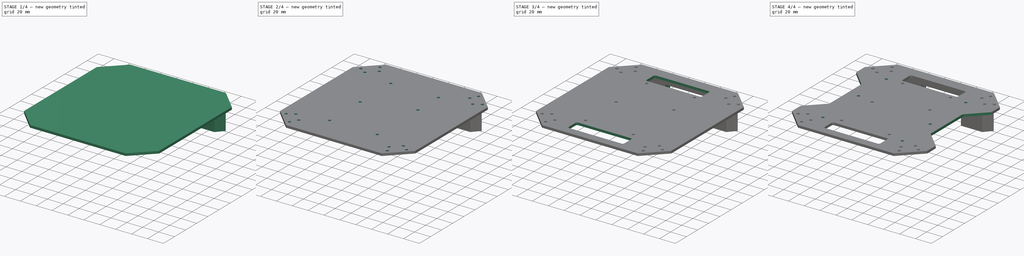
[diagram: build sequence overview — one tinted view per stage of 4, left to right]
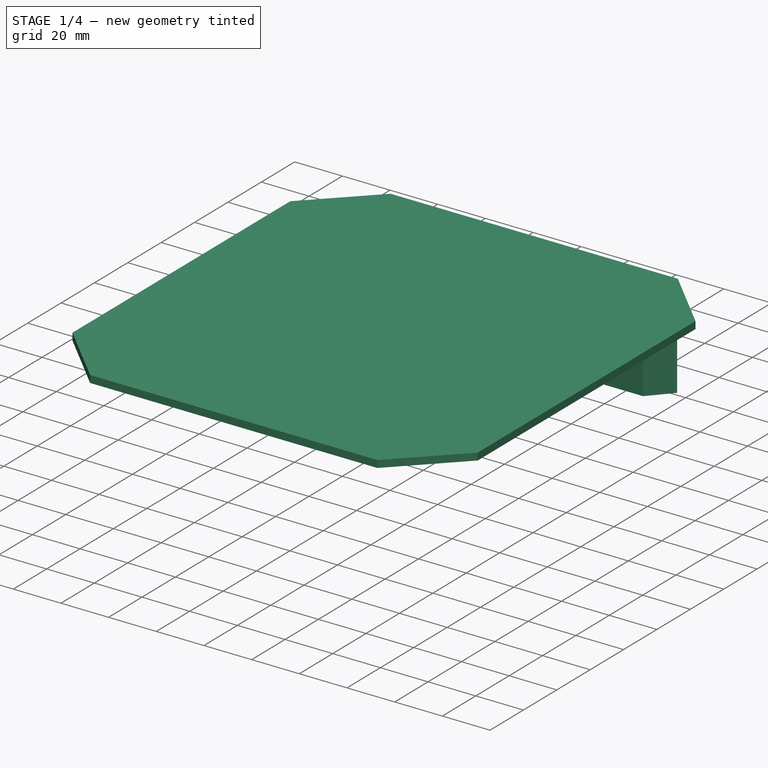
[diagram: stage 1 of 4 — iso view after this stage's code; geometry added in this stage tinted green]
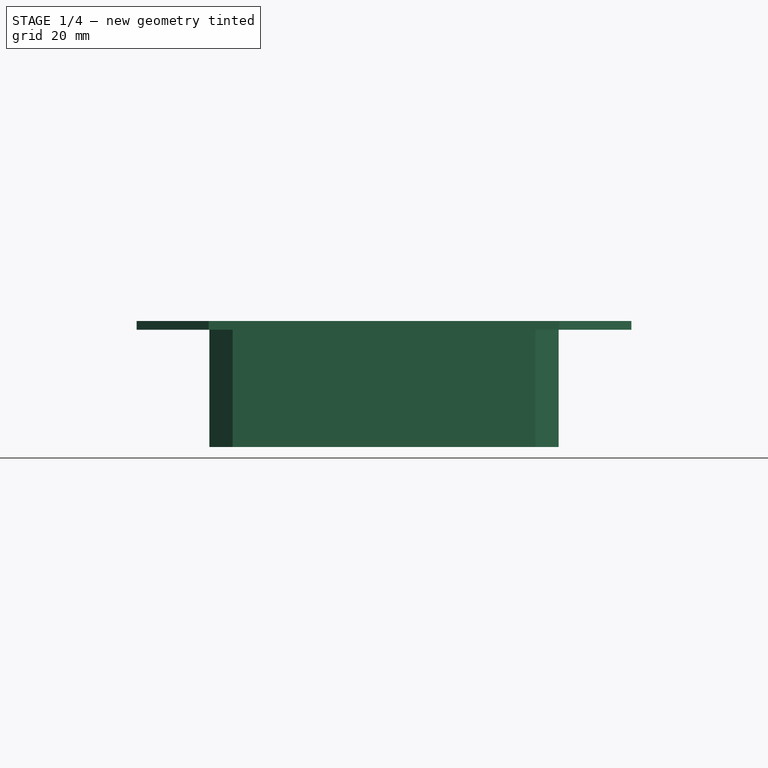
[diagram: stage 1 of 4 — front view after this stage's code; geometry added in this stage tinted green]
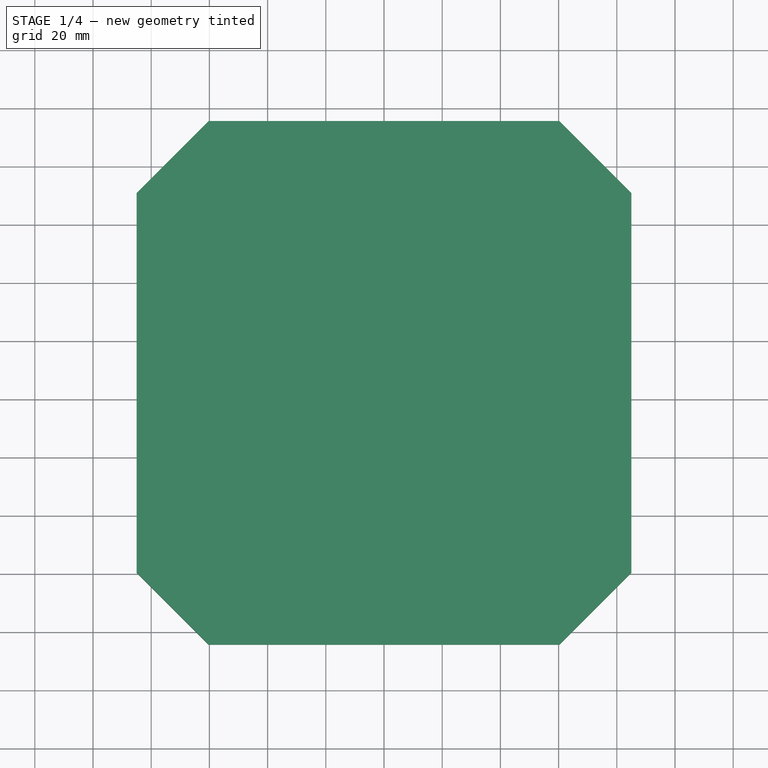
[diagram: stage 1 of 4 — top view after this stage's code; geometry added in this stage tinted green]
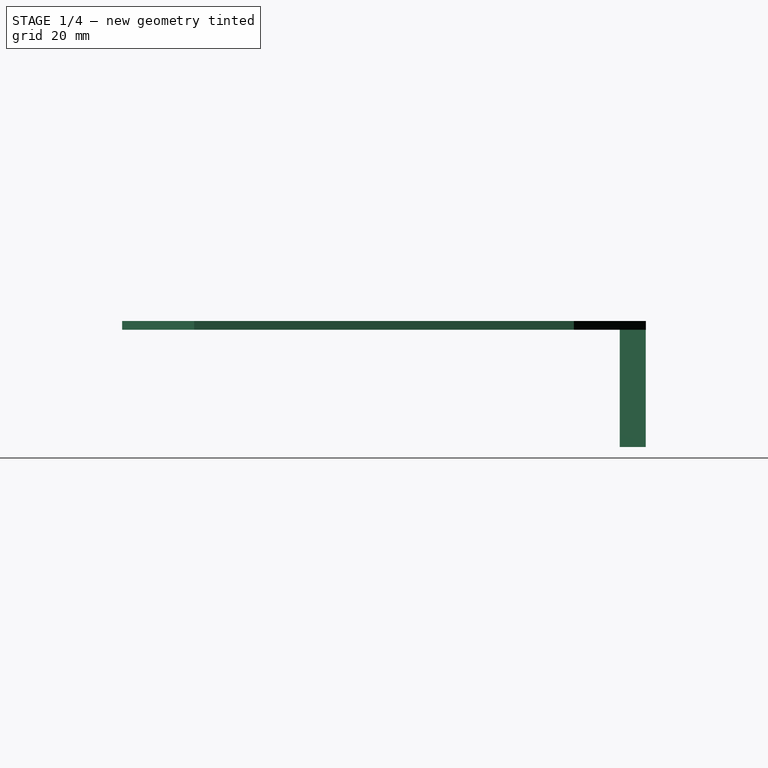
[diagram: stage 1 of 4 — right view after this stage's code; geometry added in this stage tinted green]
FCSTD DOCUMENT  (FreeCAD 1.0R39285 (Git))
Label: rr-top-body
License: All rights reserved
LicenseURL: http://en.wikipedia.org/wiki/All_rights_reserved
objects: Sketcher::SketchObject×9, PartDesign::Pocket×4, PartDesign::Hole×3, PartDesign::Pad×2, Spreadsheet::Sheet×1, PartDesign::Body×1
note: 46 computed .brp shape members not serialized (recipe doc carries the construction recipe); baked Part::Feature solids carry a one-line shape summary decoded from their .brp

FEATURE [Spreadsheet::Sheet] Spreadsheet
  cells = A1='offset_x; B1(offset_x)=15; A2='offset_y; B2(offset_y)=15; A3='base_x; B3(base_x)=170; A4='base_y; B4(base_y)=180; A5='base_h; B5(base_h)=183.5
FEATURE [Sketcher::SketchObject] Sketch  label="base_plate"
  ArcFitTolerance = 1e-06
  AttachmentSupport = -> [XY_Plane]
  FullyConstrained = true
  MakeInternals = false
  MapMode = 5
  expr: Constraints[12] = Spreadsheet.offset_y
  expr: Constraints[13] = Spreadsheet.offset_x
  expr: Constraints[18] = Spreadsheet.offset_x
  expr: Constraints[22] = Spreadsheet.base_x
  expr: Constraints[23] = Spreadsheet.base_y
  sketch-geometry (8):
    g0: LineSegment StartX=15 StartY=39.7487 StartZ=0 EndX=39.7487 EndY=15 EndZ=0
    g1: LineSegment StartX=39.7487 StartY=15 StartZ=0 EndX=160.251 EndY=15 EndZ=0
    g2: LineSegment StartX=160.251 StartY=15 StartZ=0 EndX=185 EndY=39.7487 EndZ=0
    g3: LineSegment StartX=185 StartY=39.7487 StartZ=0 EndX=185 EndY=170.251 EndZ=0
    g4: LineSegment StartX=185 StartY=170.251 StartZ=0 EndX=160.251 EndY=195 EndZ=0
    g5: LineSegment StartX=160.251 StartY=195 StartZ=0 EndX=39.7487 EndY=195 EndZ=0
    g6: LineSegment StartX=39.7487 StartY=195 StartZ=0 EndX=15 EndY=170.251 EndZ=0
    g7: LineSegment StartX=15 StartY=170.251 StartZ=0 EndX=15 EndY=39.7487 EndZ=0
  constraints (24):
    c: Coincident(g0,g1)
    c: Horizontal(g1)
    c: Coincident(g1,g2)
    c: Coincident(g2,g3)
    c: Vertical(g3)
    c: Coincident(g3,g4)
    c: Coincident(g4,g5)
    c: Horizontal(g5)
    c: Coincident(g5,g6)
    c: Coincident(g6,g7)
    c: Coincident(g7,g0)
    c: Distance(g0,g0) = 35
    c: DistanceY(g-1,g0) = 15
    c: DistanceX(g-1,g6) = 15
    c: Angle(g1,g0) = 2.35619
    c: Equal(g0,g6)
    c: Equal(g6,g4)
    c: Equal(g4,g2)
    c: DistanceX(g-1,g0) = 15
    c: Horizontal(g2,g0)
    c: Horizontal(g6,g3)
    c: Vertical(g5,g0)
    c: DistanceX(g0,g2) = 170
    c: DistanceY(g0,g5) = 180
FEATURE [Sketcher::SketchObject] Sketch001  label="engine_arm_holes"
  ArcFitTolerance = 1e-06
  AttachmentSupport = -> [XY_Plane]
  FullyConstrained = true
  MakeInternals = false
  MapMode = 5
  expr: Constraints[13] = Spreadsheet.base_x - 47
  expr: Constraints[21] = Spreadsheet.base_h
  expr: Constraints[22] = Spreadsheet.base_h
  expr: Constraints[42] = Spreadsheet.base_h
  expr: Constraints[43] = Spreadsheet.base_h
  expr: Constraints[44] = 10
  sketch-geometry (16):
    g0: Circle CenterX=32.5993 CenterY=42.7041 CenterZ=0 NormalX=0 NormalY=0 NormalZ=1 AngleXU=0 Radius=1.5
    g1: Circle CenterX=43.5 CenterY=32.4 CenterZ=0 NormalX=0 NormalY=0 NormalZ=1 AngleXU=0 Radius=1.5
    g2: Circle CenterX=24 CenterY=37.6 CenterZ=0 NormalX=0 NormalY=0 NormalZ=1 AngleXU=0 Radius=1.5
    g3: Circle CenterX=38.1841 CenterY=23.5 CenterZ=0 NormalX=0 NormalY=0 NormalZ=1 AngleXU=0 Radius=1.5
    g4: Circle CenterX=161.184 CenterY=23.5 CenterZ=0 NormalX=0 NormalY=0 NormalZ=1 AngleXU=0 Radius=1.5
    g5: Circle CenterX=176.085 CenterY=36.8406 CenterZ=0 NormalX=0 NormalY=0 NormalZ=1 AngleXU=0 Radius=1.5
    g6: Circle CenterX=167.984 CenterY=42.7041 CenterZ=0 NormalX=0 NormalY=0 NormalZ=1 AngleXU=0 Radius=1.5
    g7: Circle CenterX=168.148 CenterY=167.067 CenterZ=0 NormalX=0 NormalY=0 NormalZ=1 AngleXU=0 Radius=1.5
    g8: Circle CenterX=157.247 CenterY=177.371 CenterZ=0 NormalX=0 NormalY=0 NormalZ=1 AngleXU=0 Radius=1.5
    g9: Circle CenterX=162.301 CenterY=186 CenterZ=0 NormalX=0 NormalY=0 NormalZ=1 AngleXU=0 Radius=1.5
    g10: Circle CenterX=176.748 CenterY=172.17 CenterZ=0 NormalX=0 NormalY=0 NormalZ=1 AngleXU=0 Radius=1.5
    g11: Circle CenterX=32.5993 CenterY=166.896 CenterZ=0 NormalX=0 NormalY=0 NormalZ=1 AngleXU=0 Radius=1.5
    g12: Circle CenterX=43.3361 CenterY=177.371 CenterZ=0 NormalX=0 NormalY=0 NormalZ=1 AngleXU=0 Radius=1.5
    g13: Circle CenterX=38.2829 CenterY=186 CenterZ=0 NormalX=0 NormalY=0 NormalZ=1 AngleXU=0 Radius=1.5
    g14: Circle CenterX=24 CenterY=172 CenterZ=0 NormalX=0 NormalY=0 NormalZ=1 AngleXU=0 Radius=1.5
    g15: Circle CenterX=157.247 CenterY=32.2293 CenterZ=0 NormalX=0 NormalY=0 NormalZ=1 AngleXU=0 Radius=1.5
  constraints (48):
    c: Equal(g1,g0)
    c: Equal(g0,g2)
    c: Equal(g2,g3)
    c: Distance(g3,g2) = 20
    c: Distance(g0,g1) = 15
    c: Radius(g2) = 1.5
    c: Distance(g2,g0) = 10
    c: DistanceY(g-1,g2) = 37.6
    c: DistanceX(g-1,g2) = 24
    c: DistanceY(g-1,g3) = 23.5
    c: DistanceY(g-1,g1) = 32.4
    c: DistanceX(g-1,g1) = 43.5
    c: Horizontal(g4,g3)
    c: DistanceX(g3,g4) = 123
    c: Horizontal(g0,g6)
    c: Distance(g4,g5) = 20
    c: Equal(g10,g8)
    c: Equal(g8,g9)
    c: Distance(g10,g9) = 20
    c: Distance(g7,g8) = 15
    c: Distance(g7,g10) = 10
    c: Distance(g1,g7) = 183.5
    c: Distance(g8,g0) = 183.5
    c: Distance(g8,g9) = 10
    c: Equal(g8,g12)
    c: Equal(g12,g13)
    c: Equal(g13,g11)
    c: Vertical(g2,g14)
    c: Vertical(g0,g11)
    c: Distance(g14,g13) = 20
    c: Distance(g11,g12) = 15
    c: Distance(g14,g11) = 10
    c: Distance(g13,g12) = 10
    c: DistanceY(g-1,g14) = 172
    c: DistanceY(g-1,g13) = 186
    c: Horizontal(g8,g12)
    c: Horizontal(g9,g13)
    c: Equal(g1,g4)
    c: Equal(g4,g15)
    c: Equal(g15,g5)
    c: Equal(g5,g6)
    c: Distance(g15,g6) = 15
    c: Distance(g11,g15) = 183.5
    c: Distance(g6,g12) = 183.5
    c: Distance(g5,g6) = 10
    c: Equal(g10,g7)
    c: Equal(g9,g1)
    c: Equal(g13,g14)
FEATURE [Sketcher::SketchObject] Sketch002  label="mounting_plate"
  ArcFitTolerance = 1e-06
  AttachmentSupport = -> [XY_Plane]
  FullyConstrained = true
  MakeInternals = false
  MapMode = 5
  expr: Constraints[11] = Spreadsheet.base_x - 33 * 2
  expr: Constraints[8] = Spreadsheet.offset_x + 25
  expr: Constraints[9] = Spreadsheet.offset_x + 33
  sketch-geometry (4):
    g0: LineSegment StartX=40 StartY=194.944 StartZ=0 EndX=48 EndY=186 EndZ=0
    g1: LineSegment StartX=48 StartY=186 StartZ=0 EndX=152 EndY=186 EndZ=0
    g2: LineSegment StartX=152 StartY=186 StartZ=0 EndX=160 EndY=194.944 EndZ=0
    g3: LineSegment StartX=160 StartY=194.944 StartZ=0 EndX=40 EndY=194.944 EndZ=0
  constraints (12):
    c: Coincident(g0,g1)
    c: Horizontal(g1)
    c: Coincident(g1,g2)
    c: Coincident(g2,g3)
    c: Coincident(g3,g0)
    c: Horizontal(g3)
    c: Distance(g0,g0) = 12
    c: Equal(g0,g2)
    c: DistanceX(g-1,g0) = 40
    c: DistanceX(g-1,g0) = 48
    c: DistanceY(g-1,g0) = 186
    c: DistanceX(g0,g1) = 104
FEATURE [Sketcher::SketchObject] Sketch003  label="Cube-kore-mount"
  ArcFitTolerance = 1e-06
  AttachmentSupport = -> [XY_Plane]
  FullyConstrained = true
  MakeInternals = false
  MapMode = 5
  expr: Constraints[16] = Spreadsheet.offset_x + Spreadsheet.base_x / 2 - 30
  expr: Constraints[17] = Spreadsheet.offset_y + (Spreadsheet.base_y - 110) / 2
  sketch-geometry (6):
    g0: Circle CenterX=70 CenterY=160 CenterZ=0 NormalX=0 NormalY=0 NormalZ=1 AngleXU=0 Radius=3.2
    g1: Circle CenterX=130 CenterY=160 CenterZ=0 NormalX=0 NormalY=0 NormalZ=1 AngleXU=0 Radius=3.2
    g2: Circle CenterX=70 CenterY=50 CenterZ=0 NormalX=0 NormalY=0 NormalZ=1 AngleXU=0 Radius=3.2
    g3: Circle CenterX=130 CenterY=50 CenterZ=0 NormalX=0 NormalY=0 NormalZ=1 AngleXU=0 Radius=3.2
    g4: Circle CenterX=70 CenterY=105 CenterZ=0 NormalX=0 NormalY=0 NormalZ=1 AngleXU=0 Radius=3.2
    g5: Circle CenterX=130 CenterY=123 CenterZ=0 NormalX=0 NormalY=0 NormalZ=1 AngleXU=0 Radius=3.2
  constraints (18):
    c: Radius(g2) = 3.2
    c: Equal(g2,g3)
    c: Equal(g3,g1)
    c: Equal(g1,g0)
    c: Vertical(g1,g3)
    c: Horizontal(g1,g0)
    c: Vertical(g2,g0)
    c: Horizontal(g2,g3)
    c: DistanceX(g0,g1) = 60
    c: DistanceY(g2,g0) = 110
    c: DistanceY(g2,g4) = 55
    c: Vertical(g2,g4)
    c: Equal(g2,g4)
    c: Equal(g4,g5)
    c: DistanceY(g3,g5) = 73
    c: Vertical(g5,g3)
    c: DistanceX(g-1,g2) = 70
    c: DistanceY(g-1,g2) = 50
FEATURE [Sketcher::SketchObject] Sketch006  label="cable_tie_holds"
  ArcFitTolerance = 1e-06
  AttachmentSupport = -> [XY_Plane]
  FullyConstrained = true
  MakeInternals = false
  MapMode = 5
  expr: Constraints[52] = Spreadsheet.base_y - 20 * 2
  expr: Constraints[54] = Spreadsheet.offset_x + Spreadsheet.base_x / 2 - 35
  sketch-geometry (24):
    g0: LineSegment StartX=65 StartY=179.121 StartZ=0 EndX=65 EndY=167.121 EndZ=0
    g1: LineSegment StartX=67.1213 StartY=165 StartZ=0 EndX=132.879 EndY=165 EndZ=0
    g2: LineSegment StartX=135 StartY=167.121 StartZ=0 EndX=135 EndY=179.121 EndZ=0
    g3: LineSegment StartX=132.879 StartY=181.243 StartZ=0 EndX=67.1213 EndY=181.243 EndZ=0
    g4: ArcOfCircle CenterX=132.879 CenterY=167.121 CenterZ=0 NormalX=0 NormalY=0 NormalZ=1 AngleXU=0 Radius=2.12132 StartAngle=4.71239 EndAngle=6.28319
    g5: GeomPoint [constr] X=135 Y=165 Z=0
    g6: ArcOfCircle CenterX=132.879 CenterY=179.121 CenterZ=0 NormalX=0 NormalY=0 NormalZ=1 AngleXU=0 Radius=2.12132 StartAngle=2e-16 EndAngle=1.5708
    g7: GeomPoint [constr] X=135 Y=181.243 Z=0
    g8: ArcOfCircle CenterX=67.1213 CenterY=179.121 CenterZ=0 NormalX=0 NormalY=0 NormalZ=1 AngleXU=0 Radius=2.12132 StartAngle=1.5708 EndAngle=3.14159
    g9: GeomPoint [constr] X=65 Y=181.243 Z=0
    g10: ArcOfCircle CenterX=67.1213 CenterY=167.121 CenterZ=0 NormalX=0 NormalY=0 NormalZ=1 AngleXU=0 Radius=2.12132 StartAngle=3.14159 EndAngle=4.71239
    g11: GeomPoint [constr] X=65 Y=165 Z=0
    g12: LineSegment StartX=65 StartY=39.1213 StartZ=0 EndX=65 EndY=27.1213 EndZ=0
    g13: LineSegment StartX=67.1213 StartY=25 StartZ=0 EndX=132.879 EndY=25 EndZ=0
    g14: LineSegment StartX=135 StartY=27.1213 StartZ=0 EndX=135 EndY=39.1213 EndZ=0
    g15: LineSegment StartX=132.879 StartY=41.2426 StartZ=0 EndX=67.1213 EndY=41.2426 EndZ=0
    g16: ArcOfCircle CenterX=132.879 CenterY=27.1213 CenterZ=0 NormalX=0 NormalY=0 NormalZ=1 AngleXU=0 Radius=2.12132 StartAngle=4.71239 EndAngle=6.28319
    g17: GeomPoint [constr] X=135 Y=25 Z=0
    g18: ArcOfCircle CenterX=132.879 CenterY=39.1213 CenterZ=0 NormalX=0 NormalY=0 NormalZ=1 AngleXU=0 Radius=2.12132 StartAngle=1.7e-15 EndAngle=1.5708
    g19: GeomPoint [constr] X=135 Y=41.2426 Z=0
    g20: ArcOfCircle CenterX=67.1213 CenterY=39.1213 CenterZ=0 NormalX=0 NormalY=0 NormalZ=1 AngleXU=0 Radius=2.12132 StartAngle=1.5708 EndAngle=3.14159
    g21: GeomPoint [constr] X=65 Y=41.2426 Z=0
    g22: ArcOfCircle CenterX=67.1213 CenterY=27.1213 CenterZ=0 NormalX=0 NormalY=0 NormalZ=1 AngleXU=0 Radius=2.12132 StartAngle=3.14159 EndAngle=4.71239
    g23: GeomPoint [constr] X=65 Y=25 Z=0
  constraints (56):
    c: Vertical(g0)
    c: Vertical(g2)
    c: Horizontal(g1)
    c: Horizontal(g3)
    c: PointOnObject(g5,g1)
    c: PointOnObject(g5,g2)
    c: Tangent(g1,g4) = -1.5708
    c: Tangent(g2,g4) = -1.5708
    c: PointOnObject(g7,g2)
    c: PointOnObject(g7,g3)
    c: Tangent(g2,g6) = -1.5708
    c: Tangent(g3,g6) = -1.5708
    c: PointOnObject(g9,g3)
    c: PointOnObject(g9,g0)
    c: Tangent(g3,g8) = -1.5708
    c: Tangent(g0,g8) = -1.5708
    c: PointOnObject(g11,g0)
    c: PointOnObject(g11,g1)
    c: Tangent(g0,g10) = -1.5708
    c: Tangent(g1,g10) = -1.5708
    c: Distance(g1,g2) = 3
    c: Equal(g4,g6)
    c: Equal(g6,g8)
    c: Equal(g8,g10)
    c: Vertical(g12)
    c: Vertical(g14)
    c: Horizontal(g13)
    c: Horizontal(g15)
    c: PointOnObject(g17,g13)
    c: PointOnObject(g17,g14)
    c: Tangent(g13,g16) = -1.5708
    c: Tangent(g14,g16) = -1.5708
    c: PointOnObject(g19,g14)
    c: PointOnObject(g19,g15)
    c: Tangent(g14,g18) = -1.5708
    c: Tangent(g15,g18) = -1.5708
    c: PointOnObject(g21,g15)
    c: PointOnObject(g21,g12)
    c: Tangent(g15,g20) = -1.5708
    c: Tangent(g12,g20) = -1.5708
    c: PointOnObject(g23,g12)
    c: PointOnObject(g23,g13)
    c: Tangent(g12,g22) = -1.5708
    c: Tangent(g13,g22) = -1.5708
    c: Distance(g13,g14) = 3
    c: Equal(g16,g18)
    c: Equal(g18,g20)
    c: Equal(g20,g22)
    c: Vertical(g20,g10)
    c: Vertical(g18,g4)
    c: DistanceY(g10,g8) = 12
    c: Equal(g12,g0)
    c: DistanceY(g13,g1) = 140
    c: DistanceX(g0,g2) = 70
    c: DistanceX(g-1,g23) = 65
    c: DistanceY(g-1,g23) = 25
FEATURE [PartDesign::Pad] Pad
  Direction = (0,0,1)
  Length = 3
  Length2 = 10
  Profile = -> Sketch
  ReferenceAxis = -> Sketch [N_Axis]
  Suppressed = false
  Type = 0
FEATURE [PartDesign::Pad] Pad001
  BaseFeature = -> Pad
  Direction = (0,0,1)
  Length = 40.3
  Length2 = 10
  Profile = -> Sketch002
  ReferenceAxis = -> Sketch002 [N_Axis]
  Reversed = true
  Suppressed = false
  Type = 0
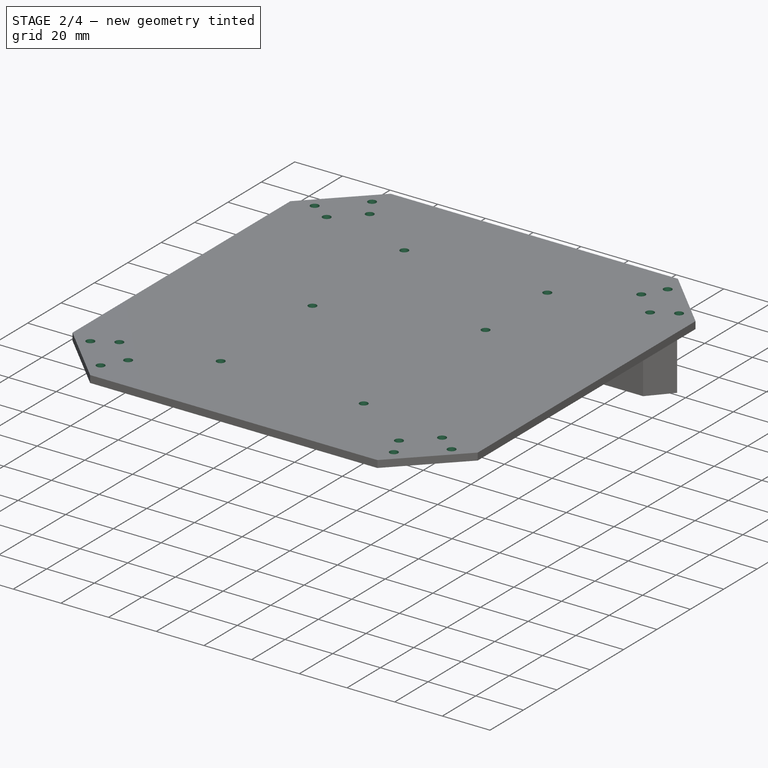
[diagram: stage 2 of 4 — iso view after this stage's code; geometry added in this stage tinted green]
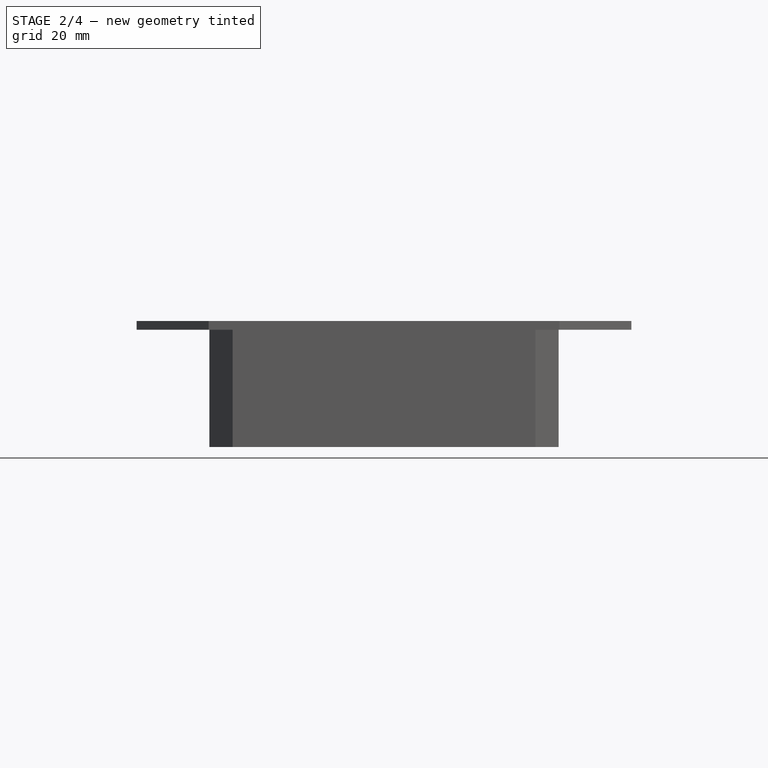
[diagram: stage 2 of 4 — front view after this stage's code; geometry added in this stage tinted green]
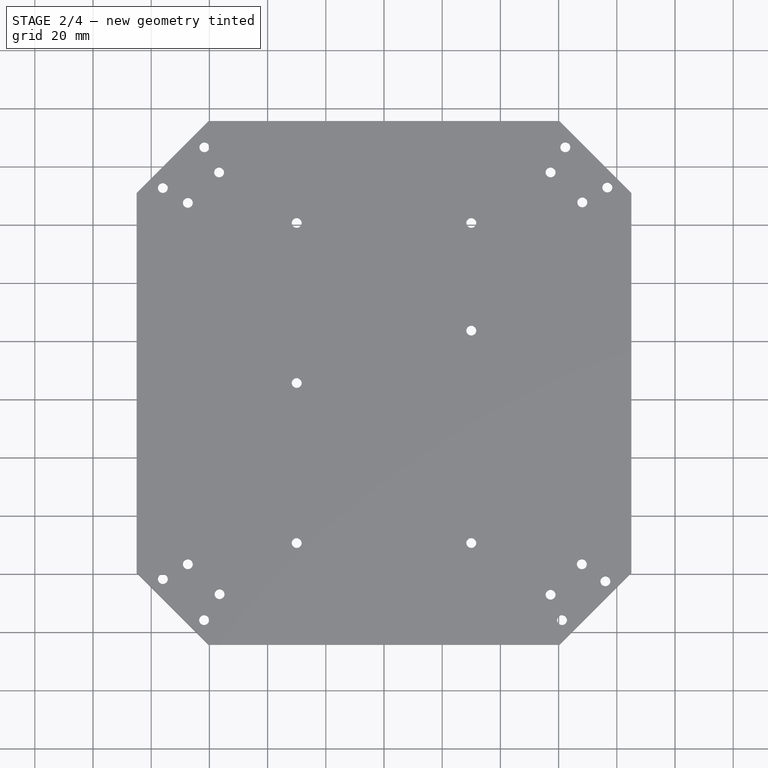
[diagram: stage 2 of 4 — top view after this stage's code; geometry added in this stage tinted green]
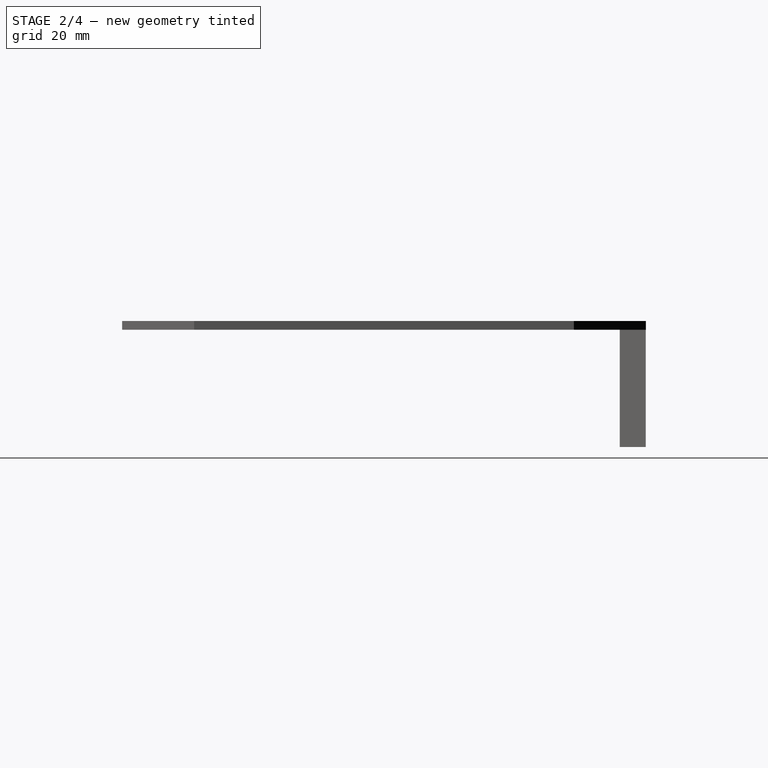
[diagram: stage 2 of 4 — right view after this stage's code; geometry added in this stage tinted green]
FEATURE [PartDesign::Hole] Hole
  BaseFeature = -> Pad001
  CustomThreadClearance = 0
  Depth = 507.719
  DepthType = 1
  Diameter = 3.4
  DrillForDepth = false
  DrillPoint = 1
  DrillPointAngle = 118
  HoleCutCountersinkAngle = 90
  HoleCutCustomValues = false
  HoleCutDepth = 0
  HoleCutDiameter = 6.1
  HoleCutType = 0
  ModelThread = false
  Profile = -> Sketch001
  Reversed = true
  Suppressed = false
  Tapered = false
  TaperedAngle = 90
  ThreadClass = 0
  ThreadDepth = 507.719
  ThreadDepthType = 0
  ThreadDirection = 0
  ThreadFit = 0
  ThreadSize = 9
  ThreadType = 2
  Threaded = false
  UseCustomThreadClearance = false
FEATURE [PartDesign::Hole] Hole001
  BaseFeature = -> Hole
  CustomThreadClearance = 0
  Depth = 507.719
  DepthType = 1
  Diameter = 3.4
  DrillForDepth = false
  DrillPoint = 1
  DrillPointAngle = 118
  HoleCutCountersinkAngle = 90
  HoleCutCustomValues = false
  HoleCutDepth = 0
  HoleCutDiameter = 6.1
  HoleCutType = 0
  ModelThread = false
  Profile = -> Sketch003
  Reversed = true
  Suppressed = false
  Tapered = false
  TaperedAngle = 90
  ThreadClass = 0
  ThreadDepth = 507.719
  ThreadDepthType = 0
  ThreadDirection = 0
  ThreadFit = 0
  ThreadSize = 9
  ThreadType = 1
  Threaded = false
  UseCustomThreadClearance = false
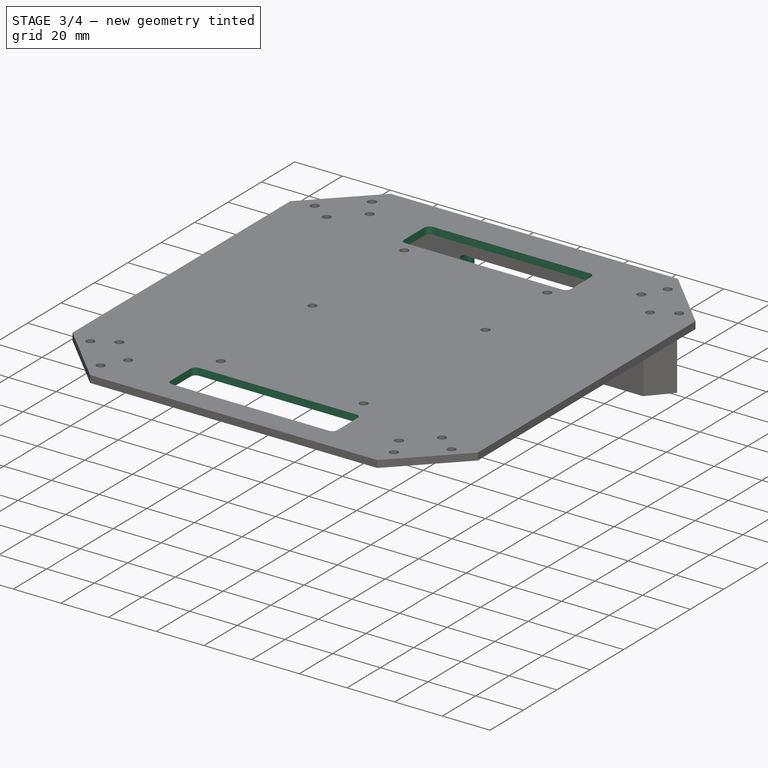
[diagram: stage 3 of 4 — iso view after this stage's code; geometry added in this stage tinted green]
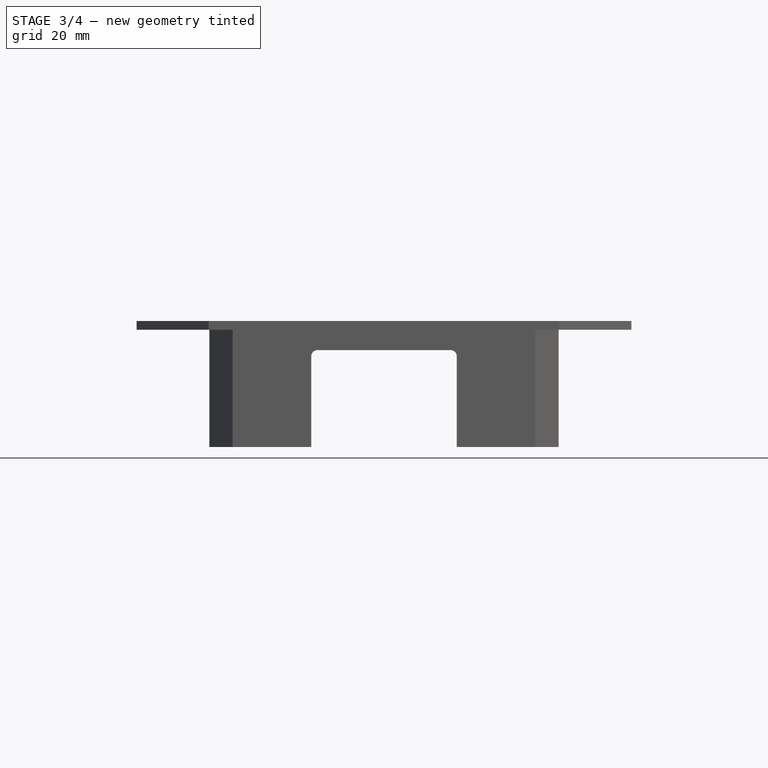
[diagram: stage 3 of 4 — front view after this stage's code; geometry added in this stage tinted green]
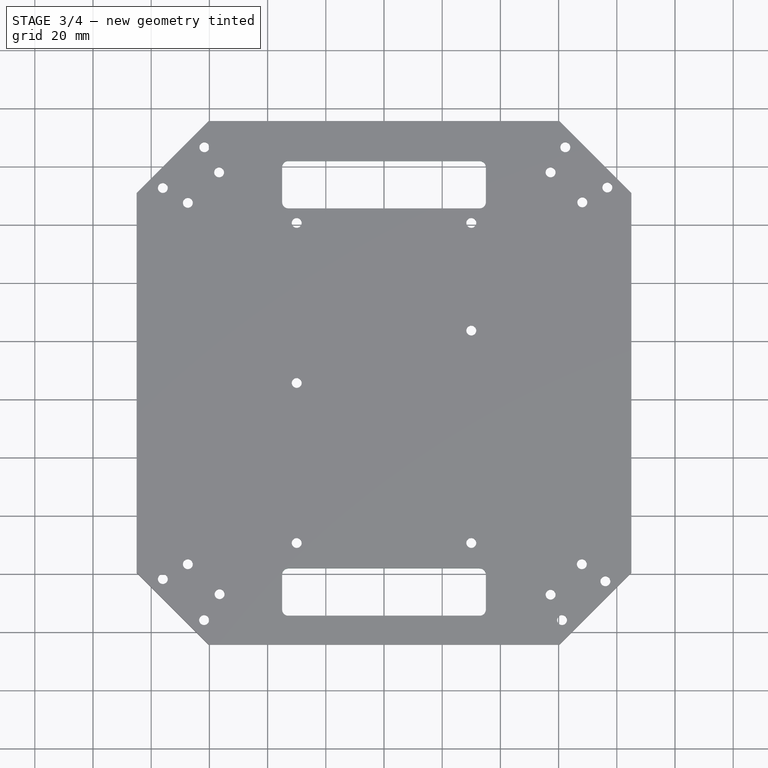
[diagram: stage 3 of 4 — top view after this stage's code; geometry added in this stage tinted green]
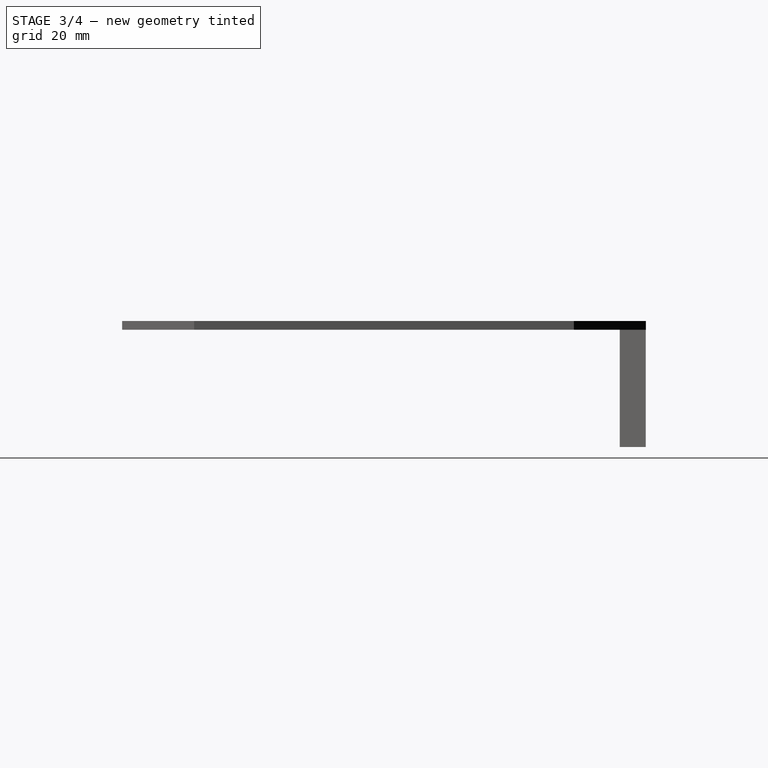
[diagram: stage 3 of 4 — right view after this stage's code; geometry added in this stage tinted green]
FEATURE [PartDesign::Pocket] Pocket
  BaseFeature = -> Hole001
  Direction = (0,0,-1)
  Length = 5
  Length2 = 5
  Profile = -> Sketch006
  ReferenceAxis = -> Sketch006 [N_Axis]
  Reversed = true
  Suppressed = false
  Type = 1
FEATURE [Sketcher::SketchObject] Sketch007  label="mount-cut-away"
  ArcFitTolerance = 1e-06
  AttachmentSupport = -> [XZ_Plane]
  FullyConstrained = true
  MakeInternals = false
  MapMode = 5
  Placement = pos=(0,0,0) rot=(1,0,0;1.5708rad)
  expr: Constraints[19] = Spreadsheet.offset_x + Spreadsheet.base_x / 2 - 25
  sketch-geometry (8):
    g0: LineSegment StartX=75 StartY=-42 StartZ=0 EndX=125 EndY=-42 EndZ=0
    g1: LineSegment StartX=125 StartY=-42 StartZ=0 EndX=125 EndY=-9.12132 EndZ=0
    g2: LineSegment StartX=122.879 StartY=-7 StartZ=0 EndX=77.1213 EndY=-7 EndZ=0
    g3: LineSegment StartX=75 StartY=-9.12132 StartZ=0 EndX=75 EndY=-42 EndZ=0
    g4: ArcOfCircle CenterX=77.1213 CenterY=-9.12132 CenterZ=0 NormalX=0 NormalY=0 NormalZ=1 AngleXU=0 Radius=2.12132 StartAngle=1.5708 EndAngle=3.14159
    g5: GeomPoint [constr] X=75 Y=-7 Z=0
    g6: ArcOfCircle CenterX=122.879 CenterY=-9.12132 CenterZ=0 NormalX=0 NormalY=0 NormalZ=1 AngleXU=0 Radius=2.12132 StartAngle=0 EndAngle=1.5708
    g7: GeomPoint [constr] X=125 Y=-7 Z=0
  constraints (20):
    c: Coincident(g0,g1)
    c: Coincident(g3,g0)
    c: Horizontal(g0)
    c: Horizontal(g2)
    c: Vertical(g1)
    c: Vertical(g3)
    c: PointOnObject(g5,g3)
    c: PointOnObject(g5,g2)
    c: Tangent(g3,g4) = -1.5708
    c: Tangent(g2,g4) = -1.5708
    c: PointOnObject(g7,g2)
    c: PointOnObject(g7,g1)
    c: Tangent(g2,g6) = -1.5708
    c: Tangent(g1,g6) = -1.5708
    c: Distance(g3,g2) = 3
    c: Equal(g4,g6)
    c: DistanceX(g0,g0) = 50
    c: DistanceY(g0,g5) = 35
    c: DistanceY(g0,g-1) = 42
    c: DistanceX(g-1,g0) = 75
FEATURE [PartDesign::Pocket] Pocket001
  BaseFeature = -> Pocket
  Direction = (0,1,-2e-16)
  Length = 5
  Length2 = 5
  Profile = -> Sketch007
  ReferenceAxis = -> Sketch007 [N_Axis]
  Suppressed = false
  Type = 1
FEATURE [Sketcher::SketchObject] Sketch008  label="switch_mnt"
  ArcFitTolerance = 1e-06
  AttachmentSupport = -> [XY_Plane]
  FullyConstrained = true
  MakeInternals = false
  MapMode = 5
  expr: Constraints[10] = Spreadsheet.offset_x + Spreadsheet.base_x / 2 - 53 / 2
  expr: Constraints[11] = Spreadsheet.offset_y + Spreadsheet.base_y - 5
  sketch-geometry (4):
    g0: LineSegment StartX=73.5 StartY=190 StartZ=0 EndX=126.5 EndY=190 EndZ=0
    g1: LineSegment StartX=126.5 StartY=190 StartZ=0 EndX=126.5 EndY=193 EndZ=0
    g2: LineSegment StartX=126.5 StartY=193 StartZ=0 EndX=73.5 EndY=193 EndZ=0
    g3: LineSegment StartX=73.5 StartY=193 StartZ=0 EndX=73.5 EndY=190 EndZ=0
  constraints (12):
    c: Coincident(g0,g1)
    c: Coincident(g1,g2)
    c: Coincident(g2,g3)
    c: Coincident(g3,g0)
    c: Horizontal(g0)
    c: Horizontal(g2)
    c: Vertical(g1)
    c: Vertical(g3)
    c: DistanceY(g0,g1) = 3
    c: DistanceX(g2,g1) = 53
    c: DistanceX(g-1,g0) = 73.5
    c: DistanceY(g-1,g0) = 190
FEATURE [PartDesign::Pocket] Pocket002
  BaseFeature = -> Pocket001
  Direction = (0,0,-1)
  Length = 35
  Length2 = 5
  Profile = -> Sketch008
  ReferenceAxis = -> Sketch008 [N_Axis]
  Suppressed = false
  Type = 1
  expr: Length = 35
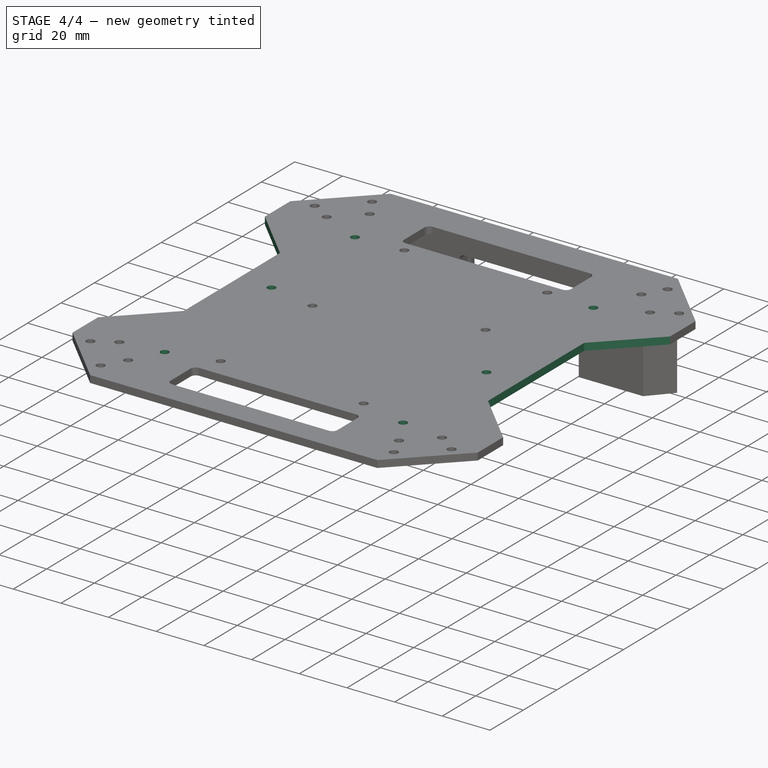
[diagram: stage 4 of 4 — iso view after this stage's code; geometry added in this stage tinted green]
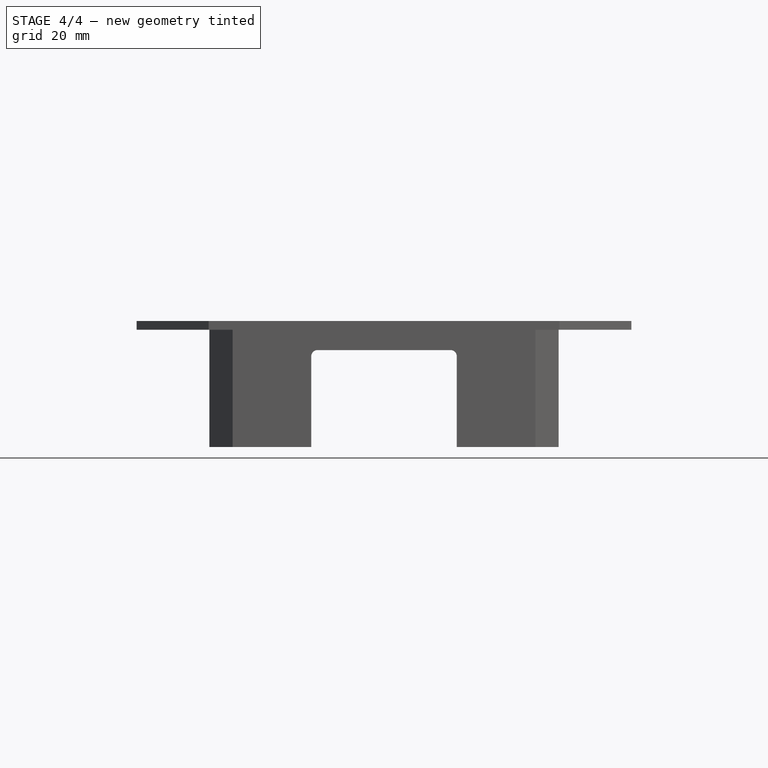
[diagram: stage 4 of 4 — front view after this stage's code; geometry added in this stage tinted green]
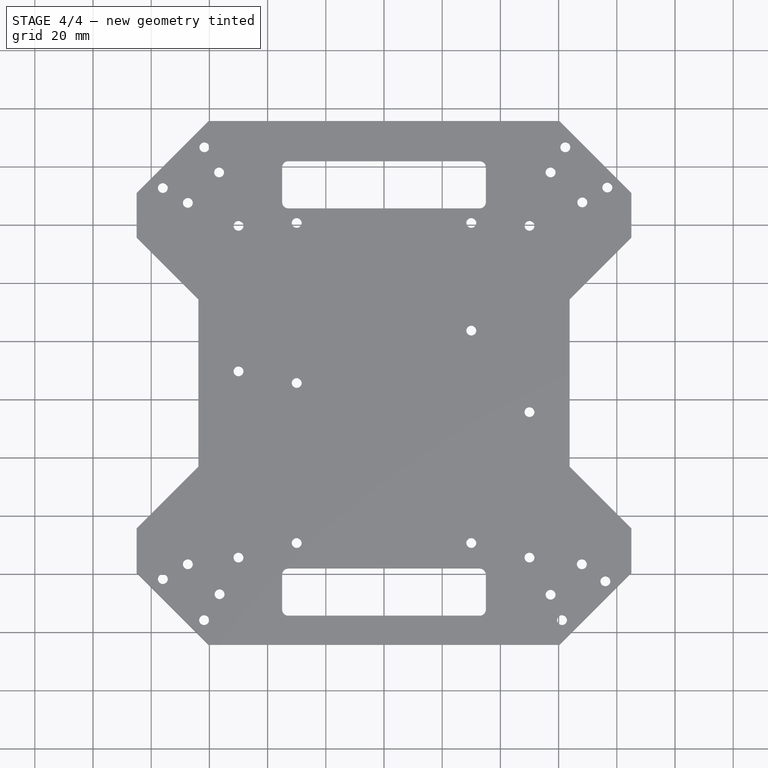
[diagram: stage 4 of 4 — top view after this stage's code; geometry added in this stage tinted green]
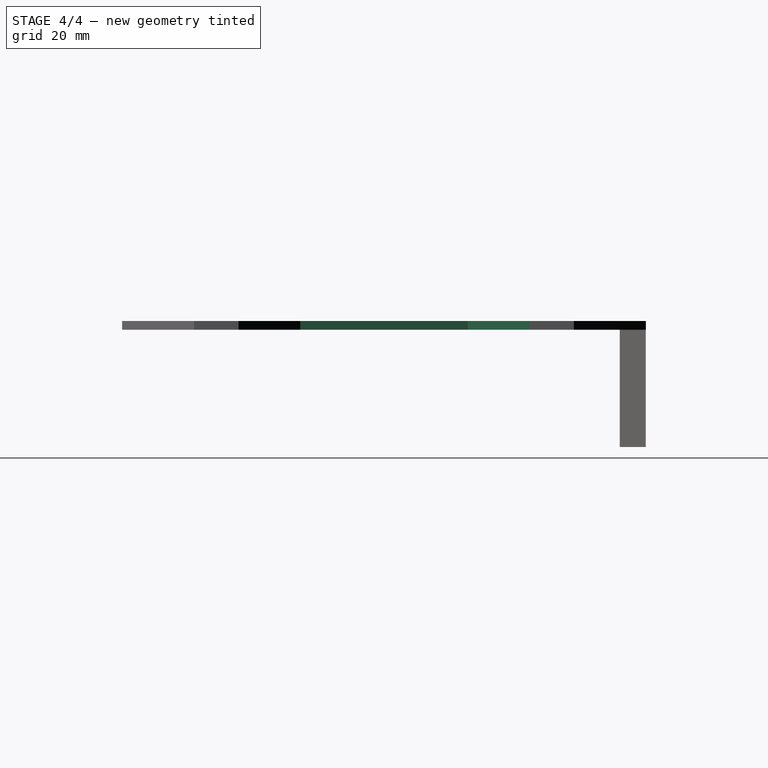
[diagram: stage 4 of 4 — right view after this stage's code; geometry added in this stage tinted green]
FEATURE [Sketcher::SketchObject] Sketch009  label="roof_mounts"
  ArcFitTolerance = 1e-06
  AttachmentSupport = -> [XY_Plane]
  FullyConstrained = true
  MakeInternals = false
  MapMode = 5
  sketch-geometry (6):
    g0: Circle CenterX=50 CenterY=45 CenterZ=0 NormalX=0 NormalY=0 NormalZ=1 AngleXU=0 Radius=1.75
    g1: Circle CenterX=150 CenterY=45 CenterZ=0 NormalX=0 NormalY=0 NormalZ=1 AngleXU=0 Radius=1.75
    g2: Circle CenterX=150 CenterY=95 CenterZ=0 NormalX=0 NormalY=0 NormalZ=1 AngleXU=0 Radius=1.75
    g3: Circle CenterX=50 CenterY=109 CenterZ=0 NormalX=0 NormalY=0 NormalZ=1 AngleXU=0 Radius=1.75
    g4: Circle CenterX=50 CenterY=159 CenterZ=0 NormalX=0 NormalY=0 NormalZ=1 AngleXU=0 Radius=1.75
    g5: Circle CenterX=150 CenterY=159 CenterZ=0 NormalX=0 NormalY=0 NormalZ=1 AngleXU=0 Radius=1.75
  constraints (18):
    c: Diameter(g0) = 3.5
    c: Equal(g0,g1)
    c: Equal(g1,g2)
    c: Equal(g2,g5)
    c: Equal(g5,g4)
    c: Equal(g4,g3)
    c: Vertical(g4,g3)
    c: Vertical(g3,g0)
    c: Vertical(g5,g2)
    c: Vertical(g2,g1)
    c: Horizontal(g4,g5)
    c: DistanceX(g0,g1) = 100
    c: DistanceY(g1,g2) = 50
    c: DistanceY(g3,g4) = 50
    c: DistanceY(g0,g4) = 114
    c: DistanceX(g-1,g0) = 50
    c: DistanceY(g-1,g0) = 45
    c: Horizontal(g1,g0)
FEATURE [PartDesign::Hole] Hole003
  BaseFeature = -> Pocket002
  CustomThreadClearance = 0
  Depth = 507.719
  DepthType = 1
  Diameter = 3.4
  DrillForDepth = false
  DrillPoint = 1
  DrillPointAngle = 118
  HoleCutCountersinkAngle = 90
  HoleCutCustomValues = false
  HoleCutDepth = 0
  HoleCutDiameter = 6.1
  HoleCutType = 0
  ModelThread = false
  Profile = -> Sketch009
  Reversed = true
  Suppressed = false
  Tapered = false
  TaperedAngle = 90
  ThreadClass = 0
  ThreadDepth = 507.719
  ThreadDepthType = 0
  ThreadDirection = 0
  ThreadFit = 0
  ThreadSize = 9
  ThreadType = 1
  Threaded = false
  UseCustomThreadClearance = false
FEATURE [Sketcher::SketchObject] Sketch010
  ArcFitTolerance = 1e-06
  AttachmentSupport = -> [XY_Plane]
  FullyConstrained = true
  MakeInternals = false
  MapMode = 5
  expr: Constraints[14] = Spreadsheet.offset_y
  sketch-geometry (8):
    g0: LineSegment StartX=15 StartY=55 StartZ=0 EndX=36.2132 EndY=76.2132 EndZ=0
    g1: LineSegment StartX=36.2132 StartY=76.2132 StartZ=0 EndX=36.2132 EndY=133.787 EndZ=0
    g2: LineSegment StartX=36.2132 StartY=133.787 StartZ=0 EndX=15 EndY=155 EndZ=0
    g3: LineSegment StartX=15 StartY=155 StartZ=0 EndX=15 EndY=55 EndZ=0
    g4: LineSegment StartX=185 StartY=55 StartZ=0 EndX=163.787 EndY=76.2132 EndZ=0
    g5: LineSegment StartX=163.787 StartY=76.2132 StartZ=0 EndX=163.787 EndY=133.787 EndZ=0
    g6: LineSegment StartX=163.787 StartY=133.787 StartZ=0 EndX=185 EndY=155 EndZ=0
    g7: LineSegment StartX=185 StartY=155 StartZ=0 EndX=185 EndY=55 EndZ=0
  constraints (24):
    c: Coincident(g0,g1)
    c: Vertical(g1)
    c: Coincident(g1,g2)
    c: Coincident(g2,g3)
    c: Coincident(g3,g0)
    c: Vertical(g3)
    c: Coincident(g4,g5)
    c: Vertical(g5)
    c: Coincident(g5,g6)
    c: Coincident(g6,g7)
    c: Coincident(g7,g4)
    c: Vertical(g7)
    c: DistanceY(g0,g2) = 100
    c: DistanceY(g-1,g0) = 55
    c: DistanceX(g-1,g0) = 15
    c: Angle(g0,g3) = 0.785398
    c: Angle(g3,g2) = 0.785398
    c: Distance(g0,g0) = 30
    c: Distance(g4,g4) = 30
    c: Horizontal(g4,g0)
    c: Horizontal(g4,g0)
    c: Horizontal(g5,g1)
    c: Horizontal(g6,g2)
    c: DistanceX(g0,g4) = 170
FEATURE [PartDesign::Pocket] Pocket003
  BaseFeature = -> Hole003
  Direction = (0,0,-1)
  Length = 5
  Length2 = 5
  Profile = -> Sketch010
  ReferenceAxis = -> Sketch010 [N_Axis]
  Reversed = true
  Suppressed = false
  Type = 0
FEATURE [PartDesign::Body] Body
  AllowCompound = false
  Group = -> [Sketch,Sketch001,Sketch002,Sketch003,Sketch006,Pad,Pad001,Hole,Hole001,Pocket,Sketch007,Pocket001,Sketch008,Pocket002,Sketch009,Hole003,Sketch010,Pocket003]
  Origin = -> Origin
  Tip = -> Pocket003
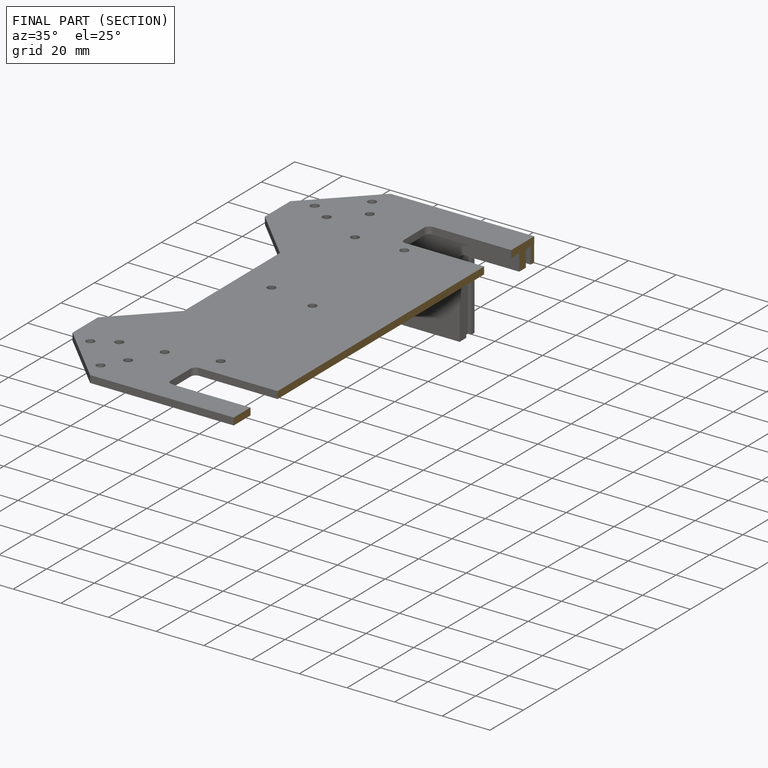
[diagram: finished part — half-section view (interior)]
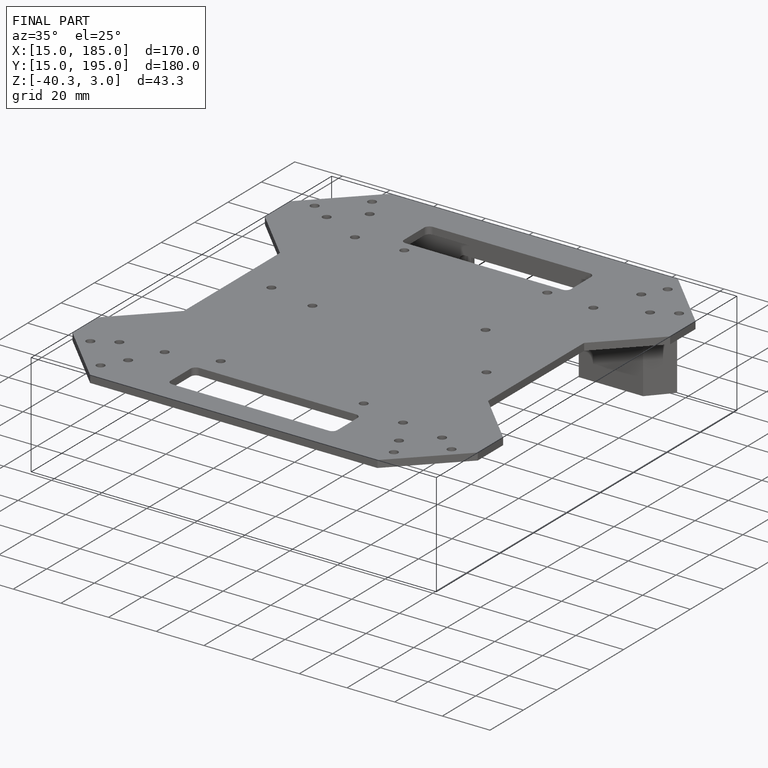
[diagram: finished part — iso view with bounding-box wireframe]
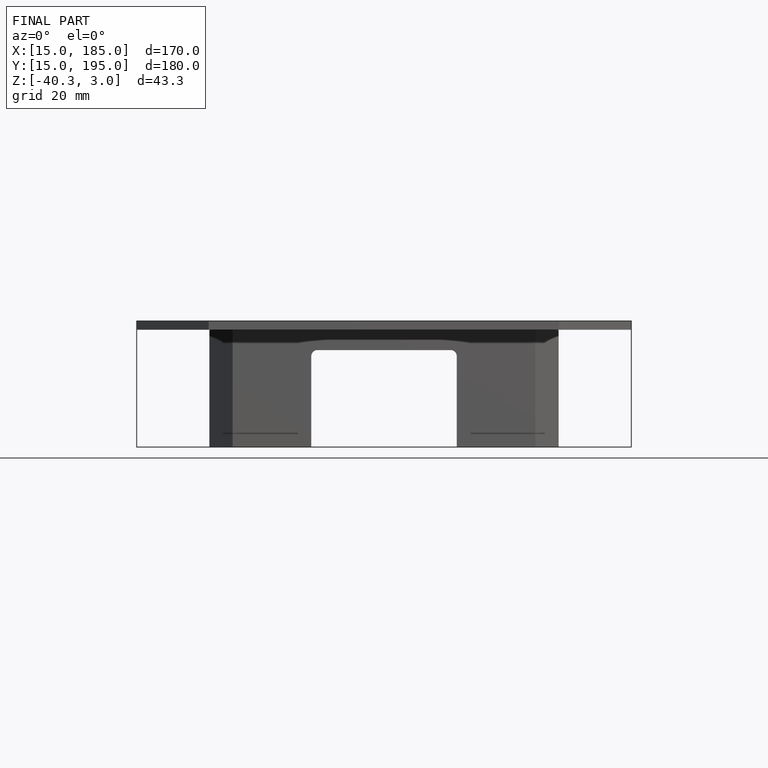
[diagram: finished part — front view with bounding-box wireframe]
